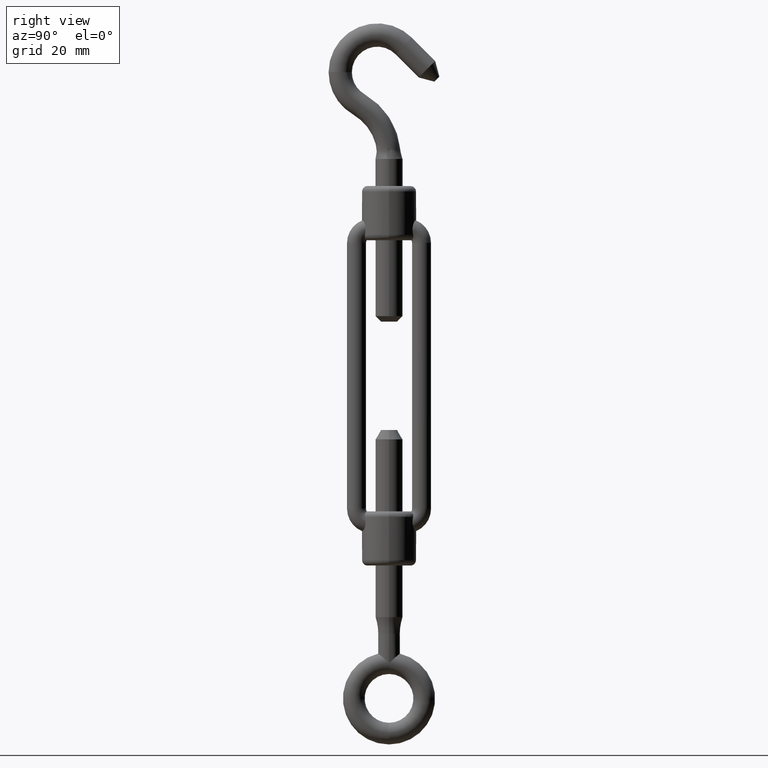
[diagram: clean part render]
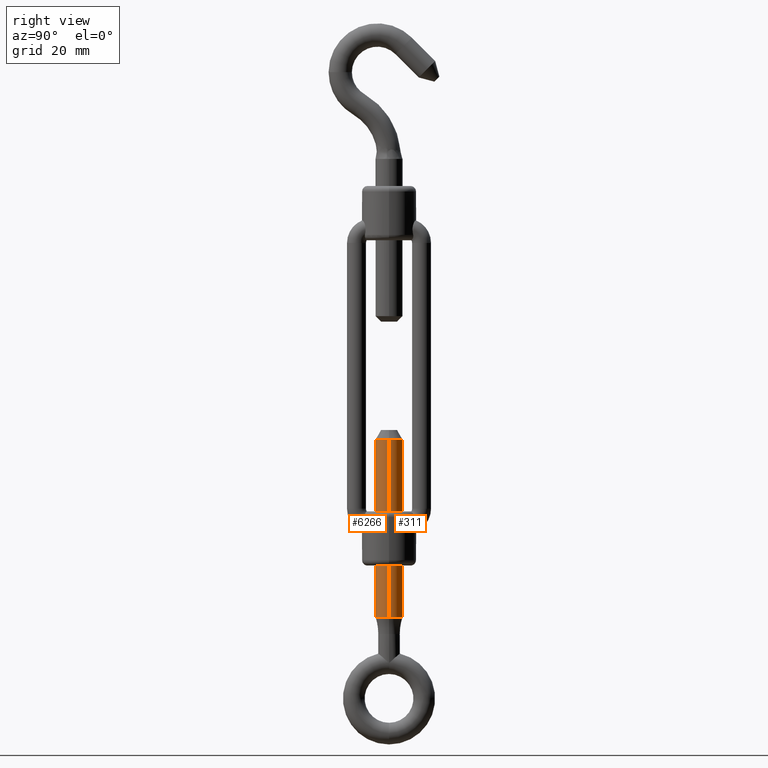
[diagram: same view with one multi-face feature highlighted, each face labeled with its STEP entity id]
A machine part, right view. The highlighted faces form ONE feature: a constant-radius fillet chain: 2 tangent blend faces with common blend radius 2.5 mm. The faces share edges in the B-rep.
Their STEP definitions:
[1] entity #311 (Cylinder):
#311 = ADVANCED_FACE ( 'NONE', ( #14411 ), #16511, .T. ) ;
#640 = CARTESIAN_POINT ( 'NONE',  ( 3.061616997868383100E-016, -23.50000000000000000, 2.500000000000000000 ) ) ;
#1405 = AXIS2_PLACEMENT_3D ( 'NONE', #11249, #15777, #5202 ) ;
#1432 = VERTEX_POINT ( 'NONE', #14889 ) ;
#1712 = LINE ( 'NONE', #3959, #2664 ) ;
#1815 = ORIENTED_EDGE ( 'NONE', *, *, #11790, .T. ) ;
#2247 = DIRECTION ( 'NONE',  ( -0.0000000000000000000, 1.000000000000000000, -0.0000000000000000000 ) ) ;
#2469 = EDGE_CURVE ( 'NONE', #4080, #1432, #3301, .T. ) ;
#2664 = VECTOR ( 'NONE', #12957, 1000.000000000000000 ) ;
#2929 = AXIS2_PLACEMENT_3D ( 'NONE', #8462, #14321, #18960 ) ;
#3301 = CIRCLE ( 'NONE', #2929, 2.500000000000000000 ) ;
#3959 = CARTESIAN_POINT ( 'NONE',  ( 0.0000000000000000000, -23.50000000000000000, -2.500000000000000000 ) ) ;
#4080 = VERTEX_POINT ( 'NONE', #11918 ) ;
#4469 = VECTOR ( 'NONE', #9431, 1000.000000000000000 ) ;
#5202 = DIRECTION ( 'NONE',  ( 0.0000000000000000000, 0.0000000000000000000, -1.000000000000000000 ) ) ;
#7060 = CIRCLE ( 'NONE', #16473, 2.500000000000000000 ) ;
#7309 = LINE ( 'NONE', #640, #4469 ) ;
#8462 = CARTESIAN_POINT ( 'NONE',  ( 0.0000000000000000000, -23.50000000000000000, 0.0000000000000000000 ) ) ;
#9431 = DIRECTION ( 'NONE',  ( -0.0000000000000000000, -1.000000000000000000, -0.0000000000000000000 ) ) ;
#9724 = CARTESIAN_POINT ( 'NONE',  ( 0.0000000000000000000, -56.26794919243116100, 0.0000000000000000000 ) ) ;
#9855 = DIRECTION ( 'NONE',  ( 0.0000000000000000000, 0.0000000000000000000, 1.000000000000000000 ) ) ;
#10489 = ORIENTED_EDGE ( 'NONE', *, *, #16644, .F. ) ;
#11249 = CARTESIAN_POINT ( 'NONE',  ( 0.0000000000000000000, -23.50000000000000000, 0.0000000000000000000 ) ) ;
#11444 = EDGE_LOOP ( 'NONE', ( #10489, #17324, #1815, #12284 ) ) ;
#11465 = CARTESIAN_POINT ( 'NONE',  ( 0.0000000000000000000, -56.26794919243116100, -2.500000000000000000 ) ) ;
#11751 = CARTESIAN_POINT ( 'NONE',  ( 3.061616997868383100E-016, -56.26794919243116100, 2.500000000000000000 ) ) ;
#11790 = EDGE_CURVE ( 'NONE', #4080, #18460, #1712, .T. ) ;
#11918 = CARTESIAN_POINT ( 'NONE',  ( 0.0000000000000000000, -23.50000000000000000, -2.500000000000000000 ) ) ;
#12284 = ORIENTED_EDGE ( 'NONE', *, *, #17012, .T. ) ;
#12957 = DIRECTION ( 'NONE',  ( -0.0000000000000000000, -1.000000000000000000, -0.0000000000000000000 ) ) ;
#14321 = DIRECTION ( 'NONE',  ( 0.0000000000000000000, 1.000000000000000000, 0.0000000000000000000 ) ) ;
#14411 = FACE_OUTER_BOUND ( 'NONE', #11444, .T. ) ;
#14570 = VERTEX_POINT ( 'NONE', #11751 ) ;
#14889 = CARTESIAN_POINT ( 'NONE',  ( 3.061616997868383100E-016, -23.50000000000000000, 2.500000000000000000 ) ) ;
#15777 = DIRECTION ( 'NONE',  ( -0.0000000000000000000, -1.000000000000000000, -0.0000000000000000000 ) ) ;
#16473 = AXIS2_PLACEMENT_3D ( 'NONE', #9724, #2247, #9855 ) ;
#16511 = CYLINDRICAL_SURFACE ( 'NONE', #1405, 2.500000000000000000 ) ;
#16644 = EDGE_CURVE ( 'NONE', #1432, #14570, #7309, .T. ) ;
#17012 = EDGE_CURVE ( 'NONE', #18460, #14570, #7060, .T. ) ;
#17324 = ORIENTED_EDGE ( 'NONE', *, *, #2469, .F. ) ;
#18460 = VERTEX_POINT ( 'NONE', #11465 ) ;
#18960 = DIRECTION ( 'NONE',  ( 0.0000000000000000000, 0.0000000000000000000, 1.000000000000000000 ) ) ;
[2] entity #6266 (Cylinder):
#557 = CARTESIAN_POINT ( 'NONE',  ( 0.0000000000000000000, -56.26794919243116100, 0.0000000000000000000 ) ) ;
#640 = CARTESIAN_POINT ( 'NONE',  ( 3.061616997868383100E-016, -23.50000000000000000, 2.500000000000000000 ) ) ;
#838 = DIRECTION ( 'NONE',  ( 0.0000000000000000000, 0.0000000000000000000, 1.000000000000000000 ) ) ;
#1432 = VERTEX_POINT ( 'NONE', #14889 ) ;
#1617 = DIRECTION ( 'NONE',  ( -0.0000000000000000000, -1.000000000000000000, -0.0000000000000000000 ) ) ;
#1712 = LINE ( 'NONE', #3959, #2664 ) ;
#2664 = VECTOR ( 'NONE', #12957, 1000.000000000000000 ) ;
#3188 = DIRECTION ( 'NONE',  ( 0.0000000000000000000, 0.0000000000000000000, -1.000000000000000000 ) ) ;
#3748 = EDGE_CURVE ( 'NONE', #14570, #18460, #18314, .T. ) ;
#3959 = CARTESIAN_POINT ( 'NONE',  ( 0.0000000000000000000, -23.50000000000000000, -2.500000000000000000 ) ) ;
#4080 = VERTEX_POINT ( 'NONE', #11918 ) ;
#4469 = VECTOR ( 'NONE', #9431, 1000.000000000000000 ) ;
#5366 = CYLINDRICAL_SURFACE ( 'NONE', #8358, 2.500000000000000000 ) ;
#6266 = ADVANCED_FACE ( 'NONE', ( #10084 ), #5366, .T. ) ;
#7309 = LINE ( 'NONE', #640, #4469 ) ;
#7346 = AXIS2_PLACEMENT_3D ( 'NONE', #15811, #12853, #838 ) ;
#7549 = EDGE_CURVE ( 'NONE', #1432, #4080, #8871, .T. ) ;
#8045 = DIRECTION ( 'NONE',  ( 0.0000000000000000000, 0.0000000000000000000, 1.000000000000000000 ) ) ;
#8358 = AXIS2_PLACEMENT_3D ( 'NONE', #12187, #1617, #3188 ) ;
#8577 = ORIENTED_EDGE ( 'NONE', *, *, #3748, .T. ) ;
#8871 = CIRCLE ( 'NONE', #7346, 2.500000000000000000 ) ;
#9431 = DIRECTION ( 'NONE',  ( -0.0000000000000000000, -1.000000000000000000, -0.0000000000000000000 ) ) ;
#9856 = AXIS2_PLACEMENT_3D ( 'NONE', #557, #18548, #8045 ) ;
#10084 = FACE_OUTER_BOUND ( 'NONE', #18717, .T. ) ;
#10714 = ORIENTED_EDGE ( 'NONE', *, *, #16644, .T. ) ;
#11465 = CARTESIAN_POINT ( 'NONE',  ( 0.0000000000000000000, -56.26794919243116100, -2.500000000000000000 ) ) ;
#11751 = CARTESIAN_POINT ( 'NONE',  ( 3.061616997868383100E-016, -56.26794919243116100, 2.500000000000000000 ) ) ;
#11790 = EDGE_CURVE ( 'NONE', #4080, #18460, #1712, .T. ) ;
#11918 = CARTESIAN_POINT ( 'NONE',  ( 0.0000000000000000000, -23.50000000000000000, -2.500000000000000000 ) ) ;
#12187 = CARTESIAN_POINT ( 'NONE',  ( 0.0000000000000000000, -23.50000000000000000, 0.0000000000000000000 ) ) ;
#12853 = DIRECTION ( 'NONE',  ( 0.0000000000000000000, 1.000000000000000000, 0.0000000000000000000 ) ) ;
#12957 = DIRECTION ( 'NONE',  ( -0.0000000000000000000, -1.000000000000000000, -0.0000000000000000000 ) ) ;
#14570 = VERTEX_POINT ( 'NONE', #11751 ) ;
#14889 = CARTESIAN_POINT ( 'NONE',  ( 3.061616997868383100E-016, -23.50000000000000000, 2.500000000000000000 ) ) ;
#15406 = ORIENTED_EDGE ( 'NONE', *, *, #7549, .F. ) ;
#15811 = CARTESIAN_POINT ( 'NONE',  ( 0.0000000000000000000, -23.50000000000000000, 0.0000000000000000000 ) ) ;
#16644 = EDGE_CURVE ( 'NONE', #1432, #14570, #7309, .T. ) ;
#17764 = ORIENTED_EDGE ( 'NONE', *, *, #11790, .F. ) ;
#18314 = CIRCLE ( 'NONE', #9856, 2.500000000000000000 ) ;
#18460 = VERTEX_POINT ( 'NONE', #11465 ) ;
#18548 = DIRECTION ( 'NONE',  ( -0.0000000000000000000, 1.000000000000000000, -0.0000000000000000000 ) ) ;
#18717 = EDGE_LOOP ( 'NONE', ( #15406, #10714, #8577, #17764 ) ) ;